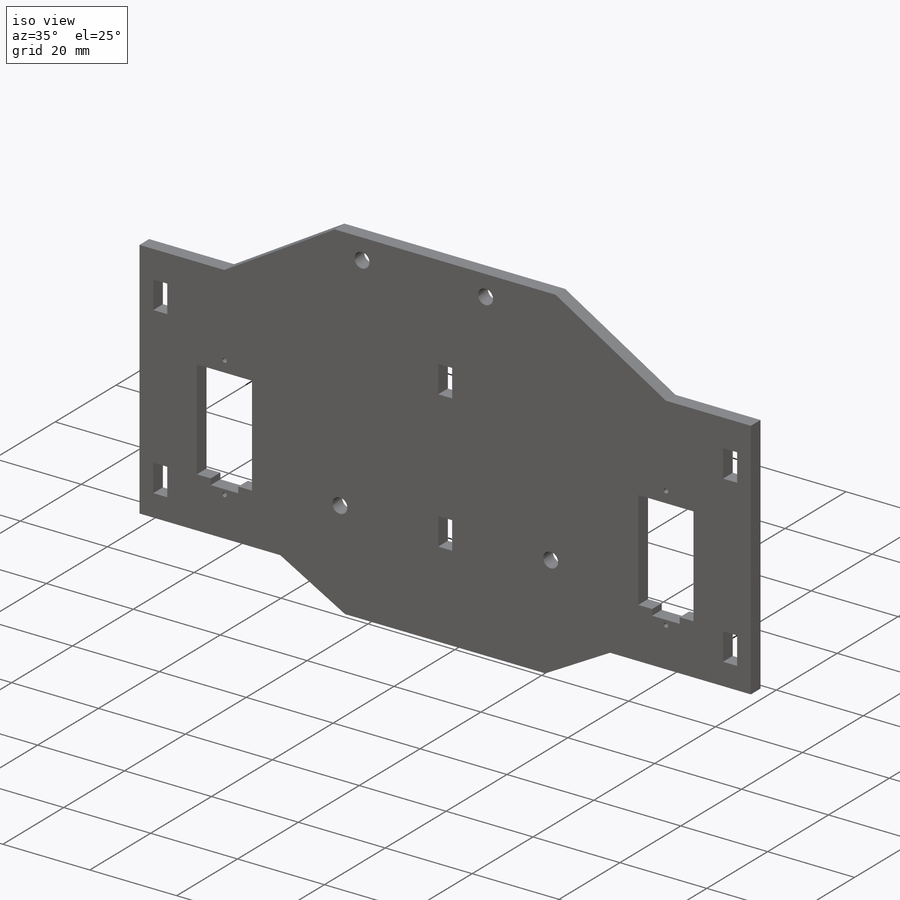
[diagram: iso view]
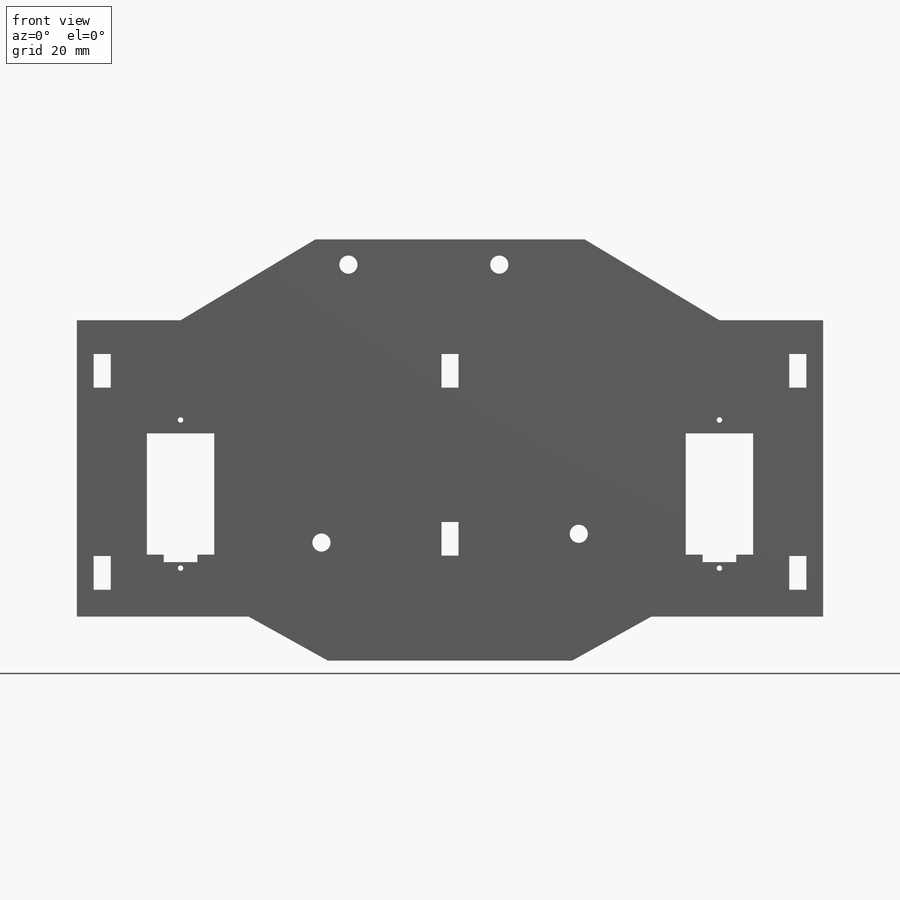
[diagram: front view]
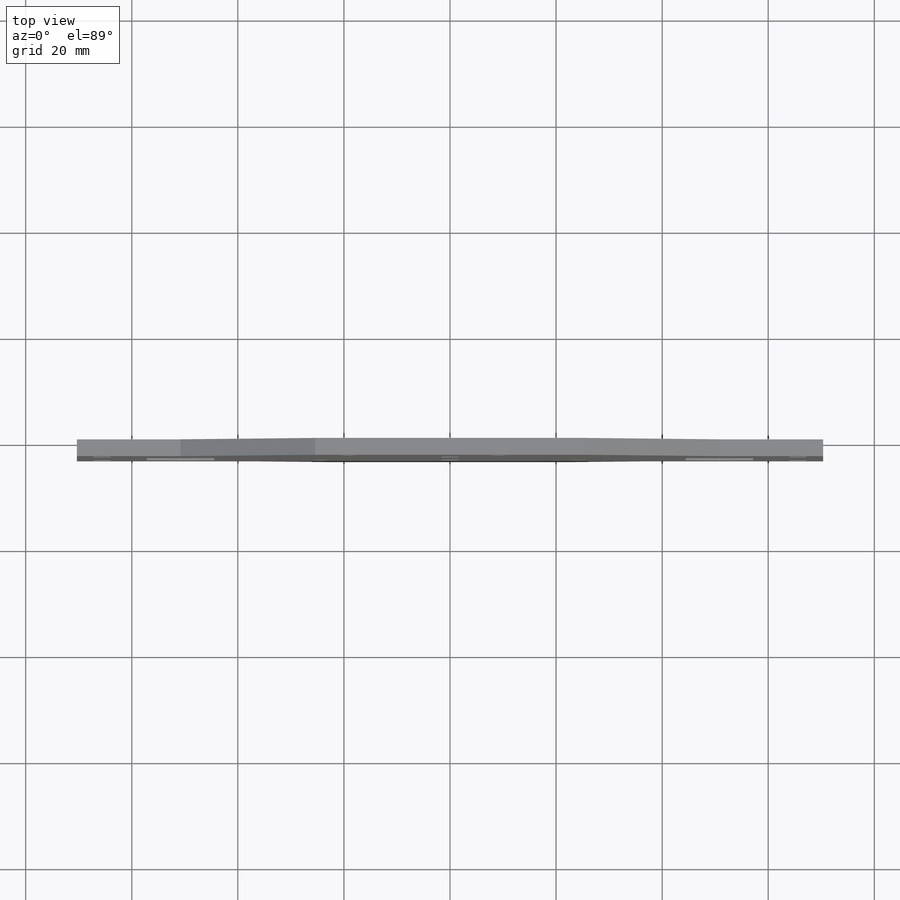
[diagram: top view]
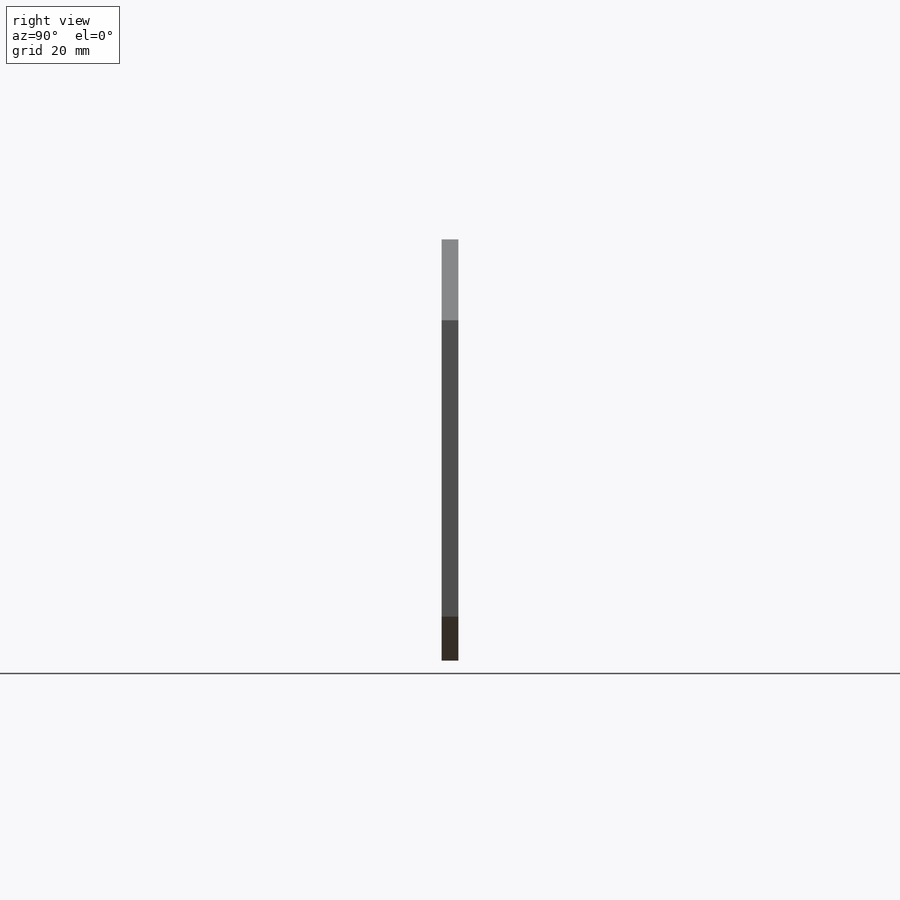
[diagram: right view]
SOLIDWORKS PART (.sldprt)
format: sldprt  version: not decoded by parser v0  size: 446,464 bytes
history: native  units: mm
features: sketch x6, cut_extrude x4, mirror x3, extrude x2, material x1 (+16 scaffold rows collapsed)
feature tree (32):
  scaffold x16  (default folders/planes/origin — collapsed)
  material  "Material <not specified>"
  sketch  "Sketch1"  dims[D1=140.716mm D2=55.88mm]
  extrude  "Boss-Extrude1"  Depth=3.175mm
  sketch  "Sketch2"  dims[c1.D9=3.175mm c1.D11=3.175mm c1.D1=6.35mm c1.D2=6.35mm c1.D3=3.2258mm c1.D4=3.2258mm c1.D5=6.35mm c1.D6=6.35mm c1.D7=3.175mm c1.D8=3.175mm c1.D10=5.08mm c1.D12=5.08mm c2.D6=31.75mm]
  cut_extrude  "holes for tabs"  [1 undecoded]
  mirror  "Mirror1"
  sketch  "Sketch3"  dims[D1=6.35mm D2=6.35mm D3=3.2258mm D4=3.2258mm D5=~6.349452mm D6=~38.029075mm]
  cut_extrude  "cut for tabs, nosepanel"  [1 undecoded]
  sketch  "Sketch5"  dims[c1.D5=1.016mm c1.D6=1.016mm c1.D9=2.032mm c1.D1=27.94mm c1.D2=6.35mm c1.D3=22.86mm c1.D4=12.7mm c1.D7=1.397mm c1.D8=6.35mm c2.D9=8.636mm c2.D1=7.62mm c2.D2=17.78mm c2.D3=7.62mm c2.D4=5.08mm c2.D5=12.7mm c2.D6=~44.374527mm c3.D1=50.8mm c3.D2=10.16mm]
  cut_extrude  "cut for optional motors (ears)"  [1 undecoded]
  mirror  "Mirror2"
  sketch  "Sketch6"  dims[c1.D1=19.05mm c1.D2=25.4mm c1.D3=31.75mm c2.D3=145.0deg c2.D4=25.4mm c2.D5=15.24mm c2.D6=~49.88748mm c3.D6=35.0deg c3.D3=50.8mm c4.D6=38.1mm]
  extrude  "Boss-Extrude2"  Depth=3.175mm
  mirror  "Mirror3"
  sketch  "Sketch7"  dims[c1.D1=3.429mm c1.D2=3.429mm c1.D3=3.429mm c1.D4=3.429mm c1.D5=14.0208mm c1.D6=51.054mm c1.D7=15.6718mm c1.D8=66.421mm c1.D9=7.62mm c1.D10=36.068mm c2.D1=3.429mm c2.D2=3.429mm c2.D3=3.429mm c2.D4=3.429mm c2.D8=3.429mm c2.D9=3.429mm c2.D10=3.429mm c2.D11=3.429mm c2.D5=27.686mm c2.D6=19.05mm c2.D7=~9.29345mm c3.D8=5.588mm c3.D9=52.07mm c3.D10=1.2954mm c3.D11=48.26mm c3.D5=14.0208mm c3.D6=51.054mm c4.D8=15.6718mm c4.D9=66.421mm c4.D10=7.62mm c4.D11=36.068mm c4.D1=2.54mm]
  cut_extrude  "cut for arduino mount holes"  [1 undecoded]
decode coverage: 8 of 15 modeling features carry decoded parameters
note: ~ marks probable driven/reference dimensions
note: 4 parameter values undecoded
summary: no parameter record found for 4 features
note: suppression state not decoded; provenance and decode notes live in map.json
